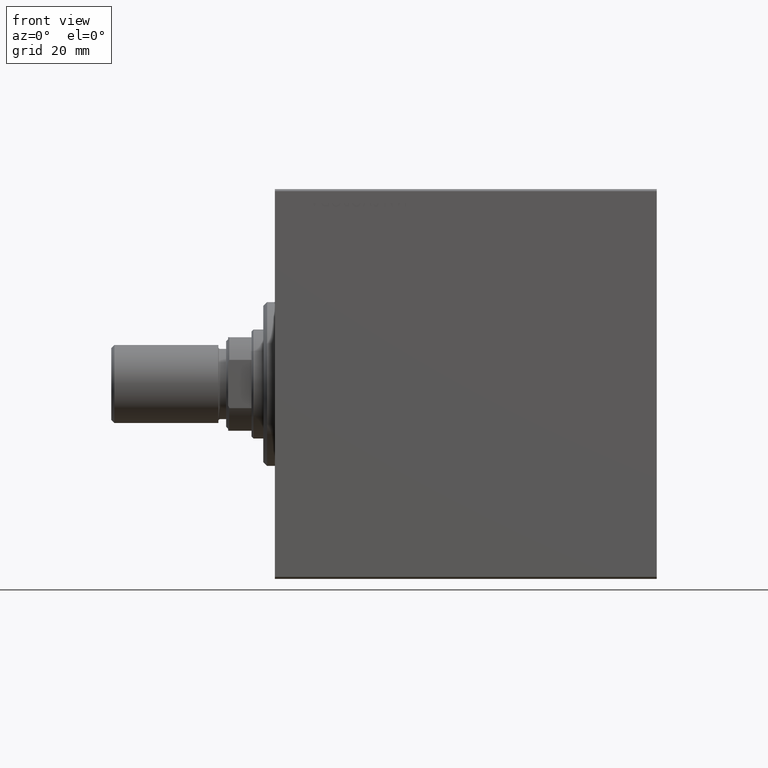
[diagram: clean part render]
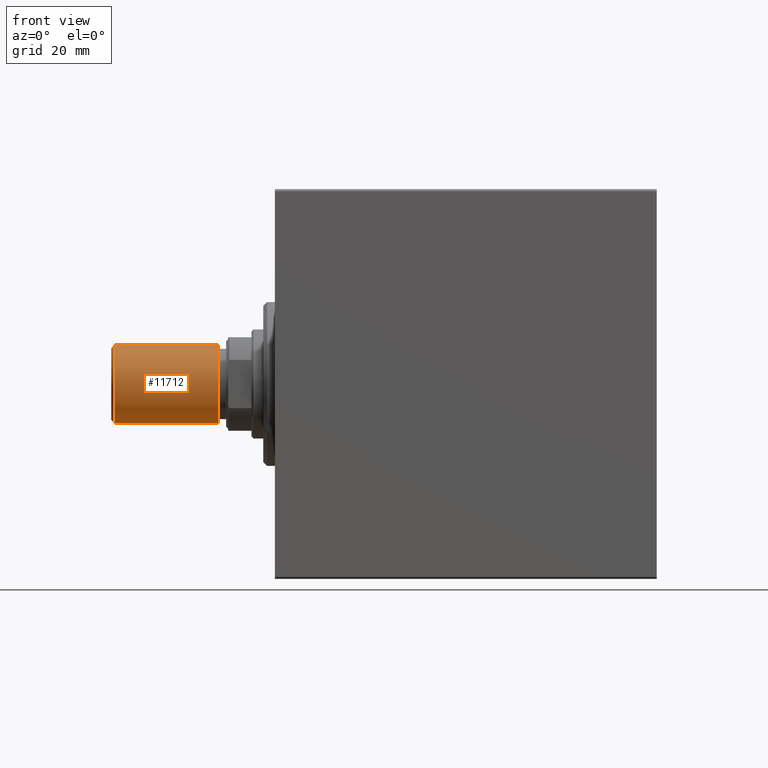
[diagram: same view with one face highlighted and labeled with its STEP entity id]
A machine part, front view. The second image highlights one B-rep face of the part: STEP entity #11712.
In plain terms, the highlighted cylindrical surface (partial cylindrical patch) has radius 10 mm, axis along (-1, -0, 0).
Its self-contained STEP definition (entity closure, byte-faithful):
#863 = ORIENTED_EDGE ( 'NONE', *, *, #9246, .F. ) ;
#2872 = CARTESIAN_POINT ( 'NONE',  ( -10.00000000000000000, 0.000000000000000000, 27.50000000000000000 ) ) ;
#3669 = DIRECTION ( 'NONE',  ( 1.000000000000000000, 0.000000000000000000, 0.000000000000000000 ) ) ;
#5587 = DIRECTION ( 'NONE',  ( -0.000000000000000000, -0.000000000000000000, -1.000000000000000000 ) ) ;
#6190 = VERTEX_POINT ( 'NONE', #2872 ) ;
#7449 = VECTOR ( 'NONE', #44141, 1000.000000000000000 ) ;
#9246 = EDGE_CURVE ( 'NONE', #6190, #43969, #26288, .T. ) ;
#10680 = CARTESIAN_POINT ( 'NONE',  ( 0.000000000000000000, 0.000000000000000000, 27.50000000000000000 ) ) ;
#11712 = ADVANCED_FACE ( 'NONE', ( #26030 ), #43517, .T. ) ;
#11820 = VECTOR ( 'NONE', #33524, 1000.000000000000000 ) ;
#13300 = AXIS2_PLACEMENT_3D ( 'NONE', #18986, #5587, #36937 ) ;
#13838 = EDGE_CURVE ( 'NONE', #42731, #26829, #24978, .T. ) ;
#13846 = DIRECTION ( 'NONE',  ( 0.000000000000000000, 0.000000000000000000, 1.000000000000000000 ) ) ;
#16940 = AXIS2_PLACEMENT_3D ( 'NONE', #10680, #13846, #24516 ) ;
#18986 = CARTESIAN_POINT ( 'NONE',  ( 0.000000000000000000, 0.000000000000000000, 27.50000000000000000 ) ) ;
#21026 = ORIENTED_EDGE ( 'NONE', *, *, #24285, .F. ) ;
#22058 = AXIS2_PLACEMENT_3D ( 'NONE', #27529, #36956, #3669 ) ;
#23814 = EDGE_CURVE ( 'NONE', #6190, #42731, #37119, .T. ) ;
#24285 = EDGE_CURVE ( 'NONE', #43969, #26829, #40790, .T. ) ;
#24516 = DIRECTION ( 'NONE',  ( 1.000000000000000000, 0.000000000000000000, 0.000000000000000000 ) ) ;
#24801 = ORIENTED_EDGE ( 'NONE', *, *, #13838, .T. ) ;
#24978 = CIRCLE ( 'NONE', #22058, 10.00000000000000000 ) ;
#26030 = FACE_OUTER_BOUND ( 'NONE', #37561, .T. ) ;
#26288 = CIRCLE ( 'NONE', #16940, 10.00000000000000000 ) ;
#26829 = VERTEX_POINT ( 'NONE', #30528 ) ;
#27529 = CARTESIAN_POINT ( 'NONE',  ( 0.000000000000000000, 0.000000000000000000, 0.7999999999999986011 ) ) ;
#28095 = CARTESIAN_POINT ( 'NONE',  ( 10.00000000000000000, 1.224646799147353256E-15, 27.50000000000000000 ) ) ;
#28886 = CARTESIAN_POINT ( 'NONE',  ( -10.00000000000000000, 0.000000000000000000, 0.7999999999999986011 ) ) ;
#30286 = CARTESIAN_POINT ( 'NONE',  ( -10.00000000000000000, 0.000000000000000000, 27.50000000000000000 ) ) ;
#30528 = CARTESIAN_POINT ( 'NONE',  ( 10.00000000000000000, 1.224646799147353256E-15, 0.7999999999999986011 ) ) ;
#32233 = ORIENTED_EDGE ( 'NONE', *, *, #23814, .T. ) ;
#33524 = DIRECTION ( 'NONE',  ( -0.000000000000000000, -0.000000000000000000, -1.000000000000000000 ) ) ;
#36937 = DIRECTION ( 'NONE',  ( -1.000000000000000000, 0.000000000000000000, 0.000000000000000000 ) ) ;
#36956 = DIRECTION ( 'NONE',  ( -0.000000000000000000, -0.000000000000000000, 1.000000000000000000 ) ) ;
#37119 = LINE ( 'NONE', #30286, #7449 ) ;
#37561 = EDGE_LOOP ( 'NONE', ( #21026, #863, #32233, #24801 ) ) ;
#40790 = LINE ( 'NONE', #44203, #11820 ) ;
#42731 = VERTEX_POINT ( 'NONE', #28886 ) ;
#43517 = CYLINDRICAL_SURFACE ( 'NONE', #13300, 10.00000000000000000 ) ;
#43969 = VERTEX_POINT ( 'NONE', #28095 ) ;
#44141 = DIRECTION ( 'NONE',  ( -0.000000000000000000, -0.000000000000000000, -1.000000000000000000 ) ) ;
#44203 = CARTESIAN_POINT ( 'NONE',  ( 10.00000000000000000, 1.224646799147353256E-15, 27.50000000000000000 ) ) ;